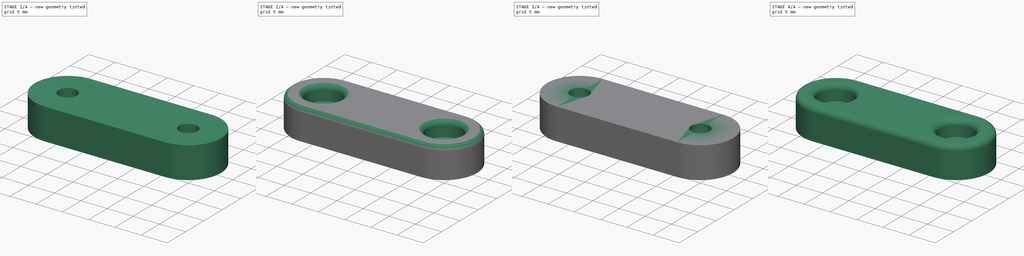
[diagram: build sequence overview — one tinted view per stage of 4, left to right]
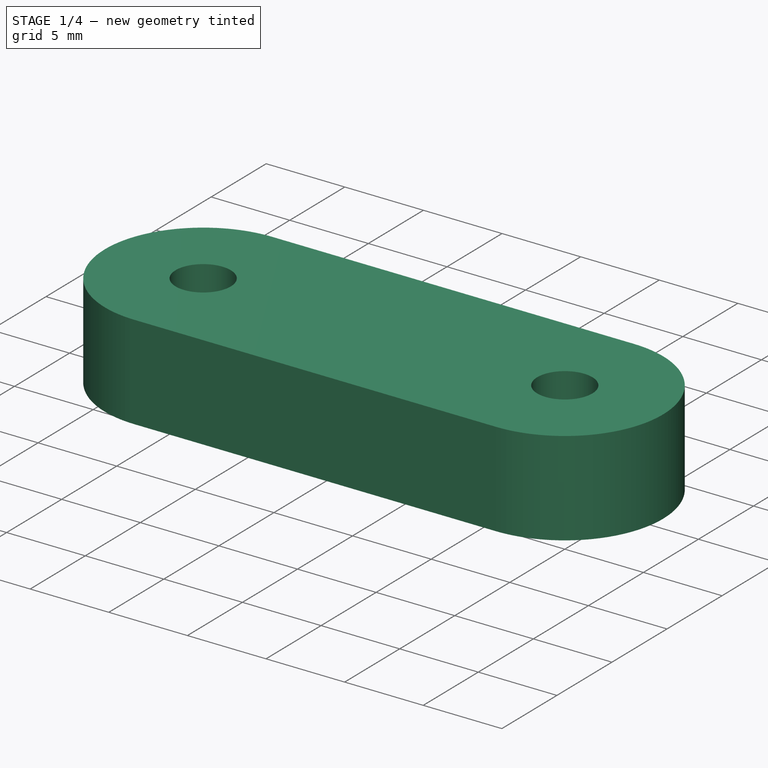
[diagram: stage 1 of 4 — iso view after this stage's code; geometry added in this stage tinted green]
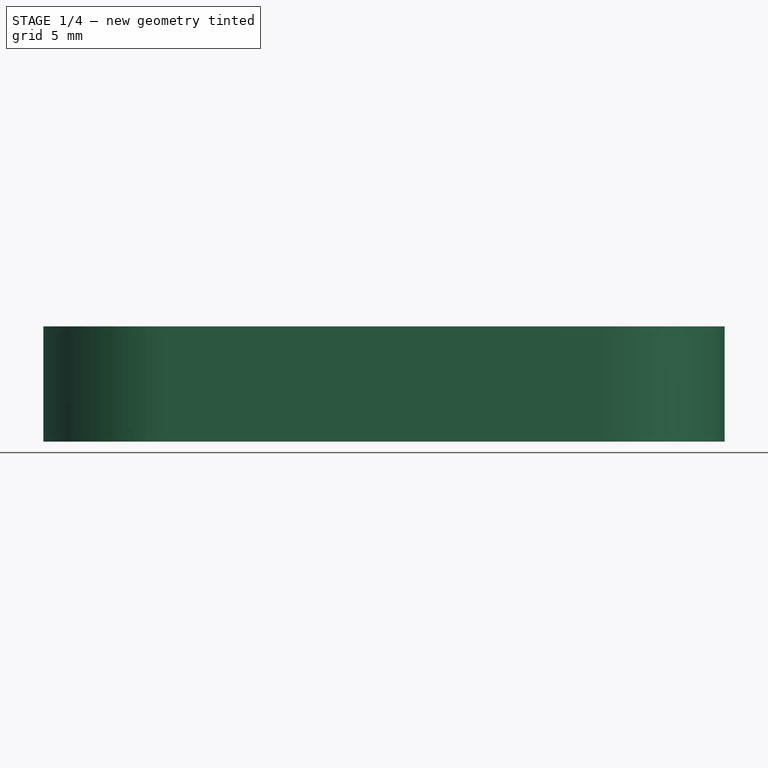
[diagram: stage 1 of 4 — front view after this stage's code; geometry added in this stage tinted green]
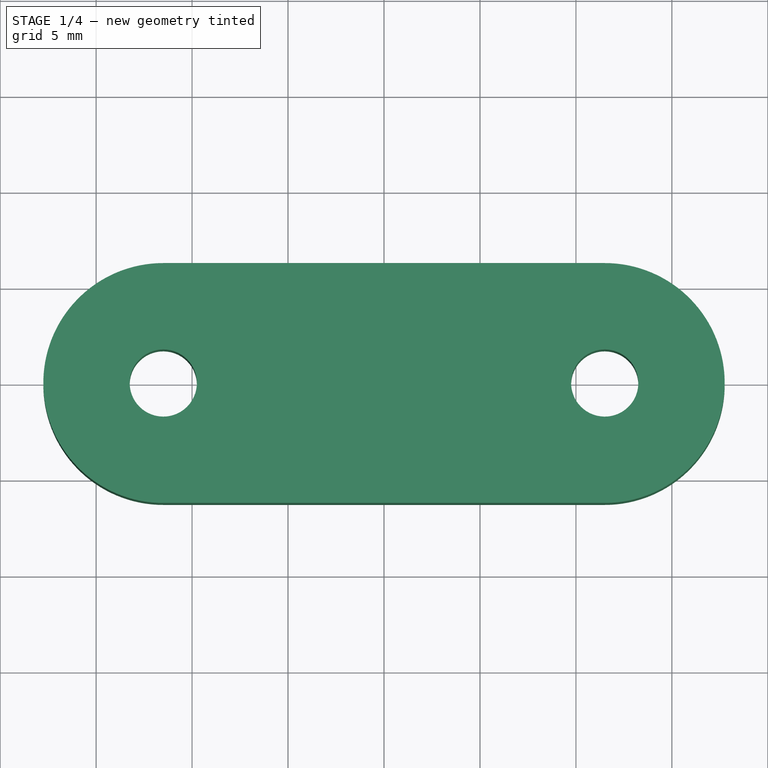
[diagram: stage 1 of 4 — top view after this stage's code; geometry added in this stage tinted green]
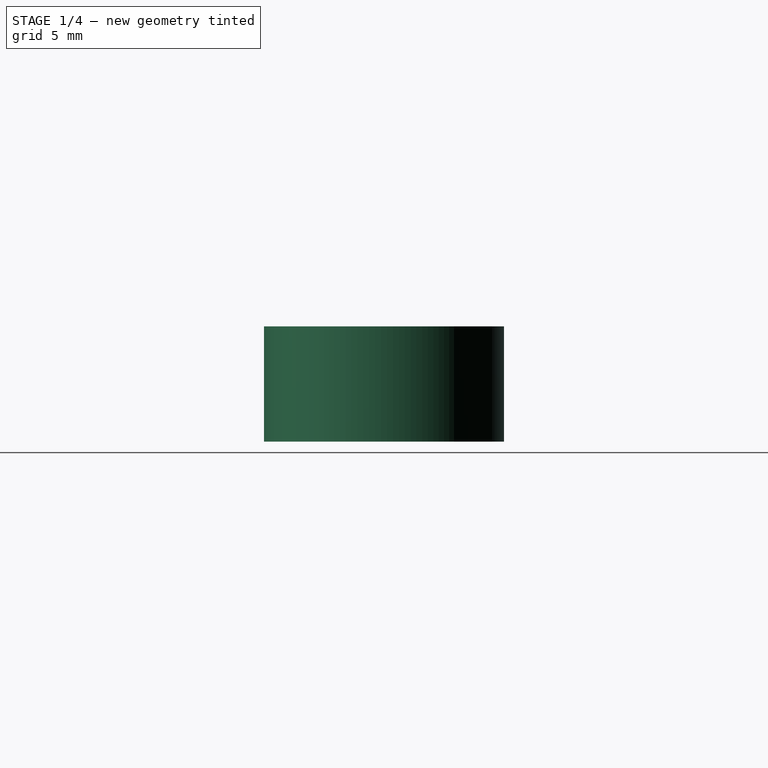
[diagram: stage 1 of 4 — right view after this stage's code; geometry added in this stage tinted green]
FCSTD DOCUMENT  (FreeCAD 0.20RUnknown)
Label: magnet_holder
License: All rights reserved
LicenseURL: http://en.wikipedia.org/wiki/All_rights_reserved
objects: Sketcher::SketchObject×8, PartDesign::Pocket×6, PartDesign::Fillet×4, PartDesign::Pad×2, PartDesign::Body×2, Spreadsheet::Sheet×1
note: 34 computed .brp shape members not serialized (recipe doc carries the construction recipe); baked Part::Feature solids carry a one-line shape summary decoded from their .brp

FEATURE [PartDesign::Body] Body  label="square_magnet_body"
  Group = -> [Sketch,Pad,Sketch002,Pocket,Sketch003,Pocket001,Fillet,Sketch004,Pocket002,Fillet001]
  Origin = -> Origin
  Tip = -> Fillet001
FEATURE [Sketcher::SketchObject] Sketch005  label="holder_outline001"
  FullyConstrained = true
  MapMode = 5
  Support = -> [XY_Plane001]
  expr: Constraints[7] = <<Params>>.holder_y_len
  expr: Constraints[8] = <<Params>>.holder_x_len
  sketch-geometry (8):
    g0: ArcOfCircle CenterX=-11.5 CenterY=-4e-16 CenterZ=0 NormalX=0 NormalY=0 NormalZ=1 AngleXU=0 Radius=6.25 StartAngle=1.5708 EndAngle=4.71239
    g1: ArcOfCircle CenterX=11.5 CenterY=-1e-16 CenterZ=0 NormalX=0 NormalY=0 NormalZ=1 AngleXU=0 Radius=6.25 StartAngle=4.71239 EndAngle=7.85398
    g2: LineSegment StartX=-11.5 StartY=-6.25 StartZ=0 EndX=11.5 EndY=-6.25 EndZ=0
    g3: LineSegment StartX=-11.5 StartY=6.25 StartZ=0 EndX=11.5 EndY=6.25 EndZ=0
    g4: GeomPoint X=-11.5 Y=-4e-16 Z=0
    g5: GeomPoint X=11.5 Y=-1e-16 Z=0
    g6: LineSegment StartX=-11.5 StartY=6.25 StartZ=0 EndX=-11.5 EndY=-6.25 EndZ=0
    g7: LineSegment StartX=11.5 StartY=6.25 StartZ=0 EndX=11.5 EndY=-6.25 EndZ=0
  constraints (15):
    c: Tangent(g0,g3) = 1.5708
    c: Tangent(g0,g2) = -1.5708
    c: Tangent(g2,g1) = -1.5708
    c: Tangent(g3,g1) = 1.5708
    c: Horizontal(g2)
    c: Equal(g0,g1)
    c: Symmetric(g0,g1,g-1)
    c: DistanceY(g0,g0) = 12.5
    c: DistanceX(g0,g1) = 23
    c: Coincident(g4,g0)
    c: Coincident(g5,g1)
    c: Coincident(g6,g0)
    c: Coincident(g6,g0)
    c: Coincident(g7,g1)
    c: Coincident(g7,g1)
FEATURE [PartDesign::Pad] Pad001
  Direction = (0,0,1)
  Length = 6
  Length2 = 100
  Profile = -> Sketch005
  ReferenceAxis = -> Sketch005 [N_Axis]
  Type = 0
  expr: Length = <<Params>>.holder_z_len
FEATURE [Sketcher::SketchObject] Sketch006  label="magnet_outline001"
  FullyConstrained = true
  MapMode = 5
  Support = -> [XY_Plane001]
  expr: Constraints[1] = <<Params>>.magnet_diameter
  sketch-geometry (1):
    g0: Circle CenterX=0 CenterY=0 CenterZ=0 NormalX=0 NormalY=0 NormalZ=1 AngleXU=0 Radius=5
  constraints (2):
    c: Coincident(g0,g-1)
    c: Diameter(g0) = 10
FEATURE [PartDesign::Pocket] Pocket003
  BaseFeature = -> Pad001
  Direction = (0,0,-1)
  Length = 2
  Length2 = 100
  Profile = -> Sketch006
  ReferenceAxis = -> Sketch006 [N_Axis]
  Reversed = true
  Type = 0
  expr: Length = <<Params>>.magnet_z_len
FEATURE [Sketcher::SketchObject] Sketch007  label="holes001"
  FullyConstrained = true
  MapMode = 5
  Support = -> [XY_Plane001]
  expr: Constraints[4] = <<Params>>.screw_hole_diam
  expr: Constraints[5] = <<Params>>.screw_hole_diam
  expr: Constraints[6] = <<Params>>.screw_hole_dist_center
  sketch-geometry (3):
    g0: LineSegment StartX=-11.5 StartY=0 StartZ=0 EndX=11.5 EndY=0 EndZ=0
    g1: Circle CenterX=11.5 CenterY=0 CenterZ=0 NormalX=0 NormalY=0 NormalZ=1 AngleXU=0 Radius=1.75
    g2: Circle CenterX=-11.5 CenterY=0 CenterZ=0 NormalX=0 NormalY=0 NormalZ=1 AngleXU=0 Radius=1.75
  constraints (7):
    c: Horizontal(g0)
    c: Symmetric(g0,g0,g-1)
    c: Coincident(g1,g0)
    c: Coincident(g2,g0)
    c: Diameter(g1) = 3.5
    c: Diameter(g2) = 3.5
    c: DistanceX(g2,g-1) = 11.5
FEATURE [PartDesign::Pocket] Pocket004
  BaseFeature = -> Pocket003
  Direction = (0,0,-1)
  Length = 5
  Length2 = 100
  Profile = -> Sketch007
  Reversed = true
  Type = 1
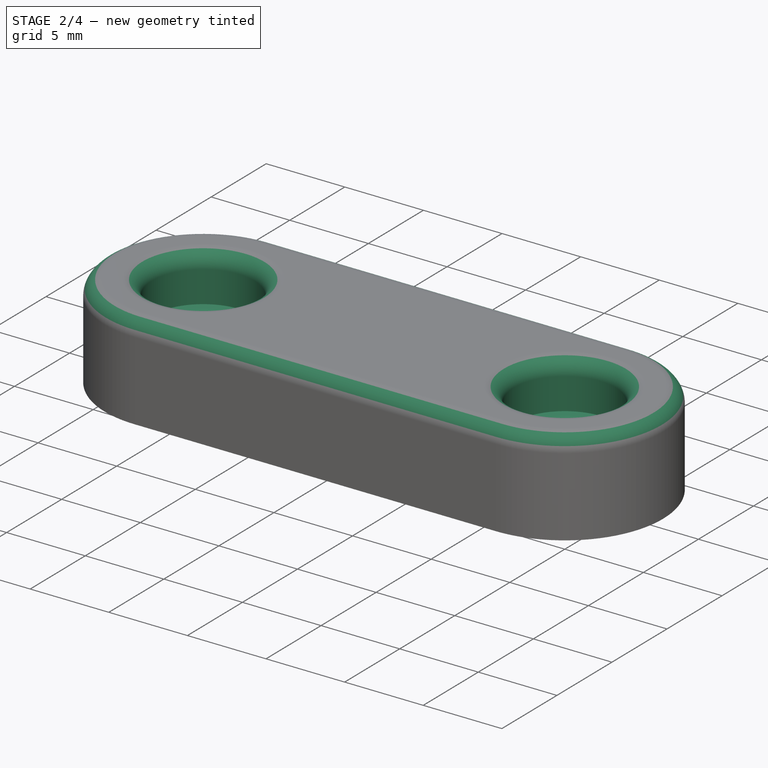
[diagram: stage 2 of 4 — iso view after this stage's code; geometry added in this stage tinted green]
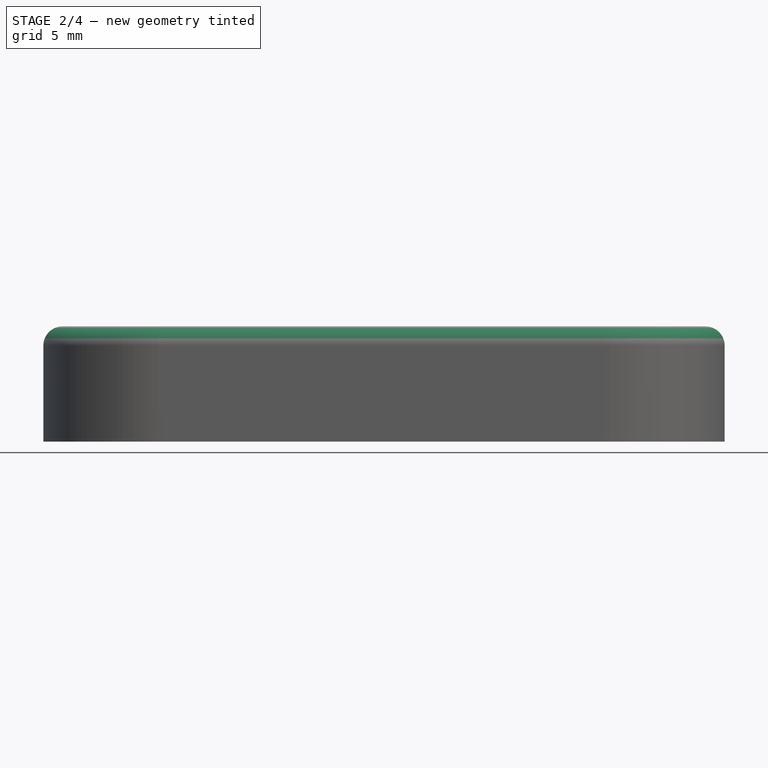
[diagram: stage 2 of 4 — front view after this stage's code; geometry added in this stage tinted green]
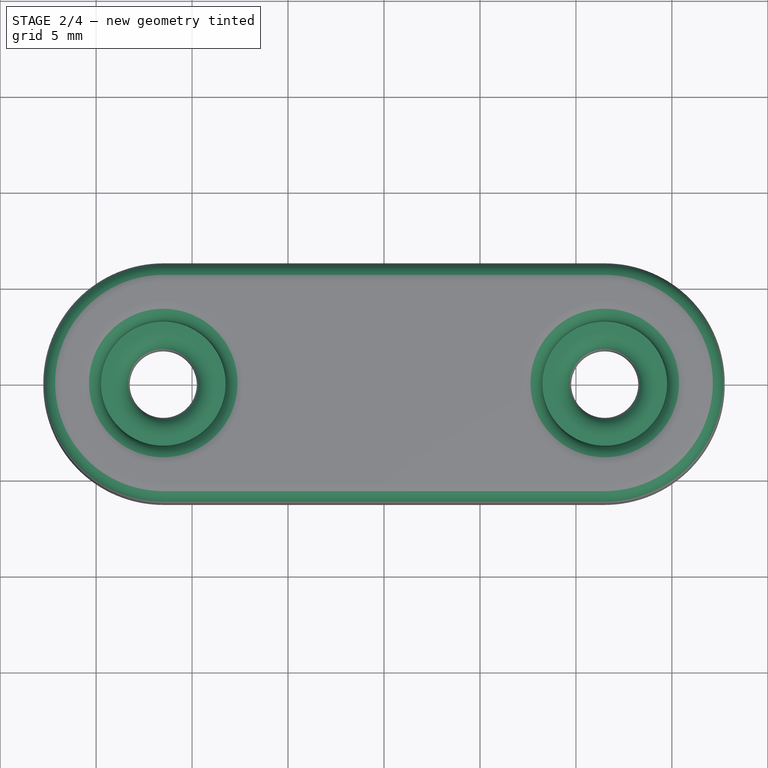
[diagram: stage 2 of 4 — top view after this stage's code; geometry added in this stage tinted green]
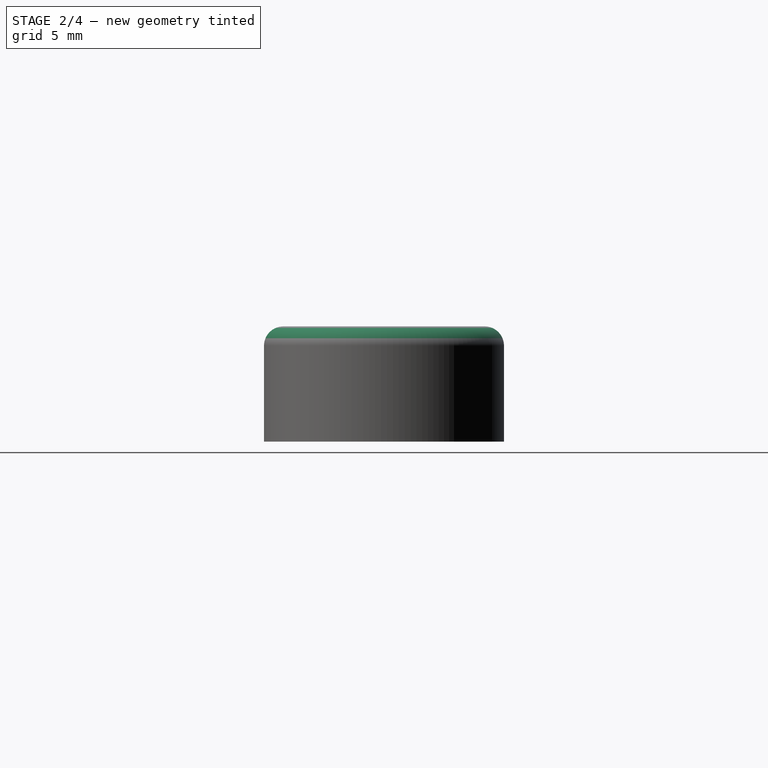
[diagram: stage 2 of 4 — right view after this stage's code; geometry added in this stage tinted green]
FEATURE [PartDesign::Fillet] Fillet002  label="holder_fillet"
  Base = -> Pocket004 [Edge10,Edge18,Edge7,Edge4]
  BaseFeature = -> Pocket004
  Radius = 1
  SupportTransform = false
  UseAllEdges = false
FEATURE [Sketcher::SketchObject] Sketch008  label="holes_top001"
  AttachmentOffset = pos=(0,0,6) rot=(0,0,1;0rad)
  FullyConstrained = true
  MapMode = 5
  Placement = pos=(0,0,6) rot=(0,0,1;0rad)
  Support = -> [XY_Plane001]
  expr: .AttachmentOffset.Base.z = <<Params>>.holder_z_len
  expr: Constraints[2] = <<Params>>.screw_hole_dist_center
  expr: Constraints[3] = <<Params>>.screw_hole_top_diam
  expr: Constraints[4] = <<Params>>.screw_hole_top_diam
  sketch-geometry (2):
    g0: Circle CenterX=-11.5 CenterY=0 CenterZ=0 NormalX=0 NormalY=0 NormalZ=1 AngleXU=0 Radius=3.25
    g1: Circle CenterX=11.5 CenterY=0 CenterZ=0 NormalX=0 NormalY=0 NormalZ=1 AngleXU=0 Radius=3.25
  constraints (5):
    c: PointOnObject(g0,g-1)
    c: Symmetric(g1,g0,g-1)
    c: DistanceX(g0,g-1) = 11.5
    c: Diameter(g0) = 6.5
    c: Diameter(g1) = 6.5
FEATURE [PartDesign::Pocket] Pocket005
  BaseFeature = -> Fillet002
  Direction = (0,0,-1)
  Length = 3
  Length2 = 100
  Profile = -> Sketch008
  ReferenceAxis = -> Sketch008 [N_Axis]
  Type = 0
  expr: Length = <<Params>>.holder_z_len / 2
FEATURE [PartDesign::Fillet] Fillet003
  Base = -> Pocket005 [Edge27,Edge23,Edge24,Edge31]
  BaseFeature = -> Pocket005
  Radius = 1
  SupportTransform = false
  UseAllEdges = false
FEATURE [PartDesign::Body] Body001  label="round_magnet_body"
  Group = -> [Sketch005,Pad001,Sketch006,Pocket003,Sketch007,Pocket004,Fillet002,Sketch008,Pocket005,Fillet003]
  Origin = -> Origin001
  Tip = -> Fillet003
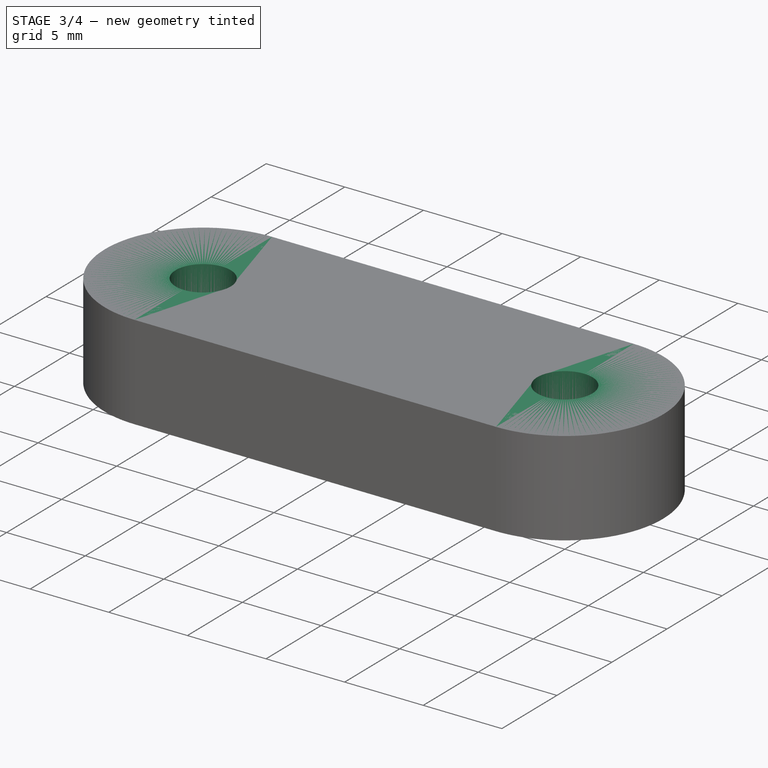
[diagram: stage 3 of 4 — iso view after this stage's code; geometry added in this stage tinted green]
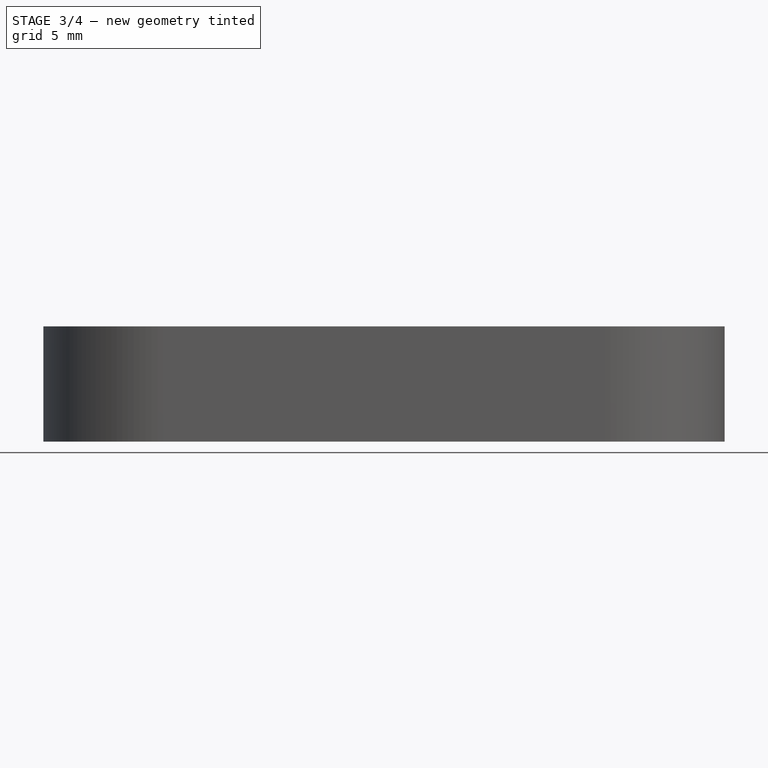
[diagram: stage 3 of 4 — front view after this stage's code; geometry added in this stage tinted green]
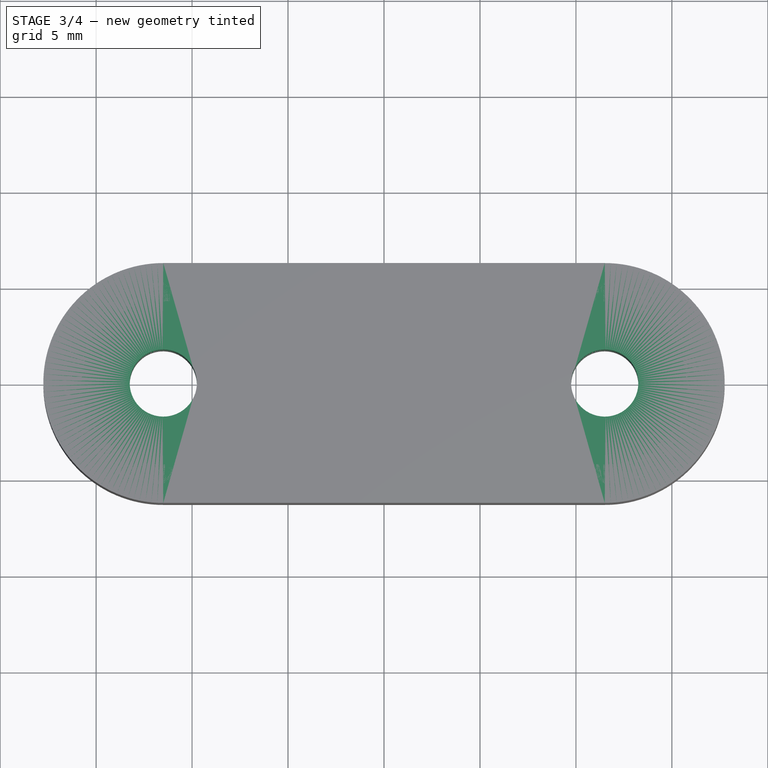
[diagram: stage 3 of 4 — top view after this stage's code; geometry added in this stage tinted green]
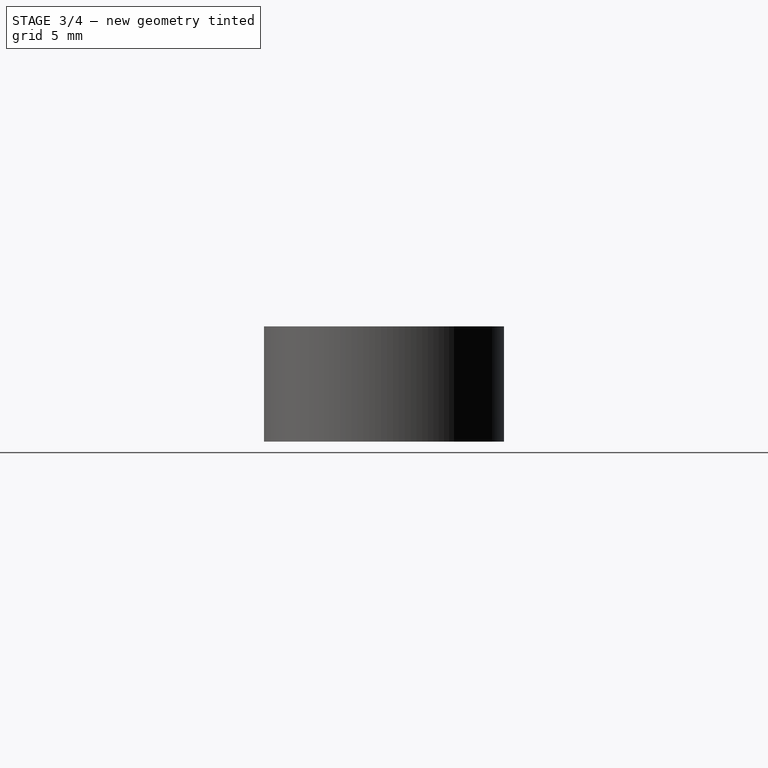
[diagram: stage 3 of 4 — right view after this stage's code; geometry added in this stage tinted green]
FEATURE [Sketcher::SketchObject] Sketch  label="holder_outline"
  FullyConstrained = true
  MapMode = 5
  Support = -> [XY_Plane]
  expr: Constraints[7] = <<Params>>.holder_y_len
  expr: Constraints[8] = <<Params>>.holder_x_len
  sketch-geometry (8):
    g0: ArcOfCircle CenterX=-11.5 CenterY=-4e-16 CenterZ=0 NormalX=0 NormalY=0 NormalZ=1 AngleXU=0 Radius=6.25 StartAngle=1.5708 EndAngle=4.71239
    g1: ArcOfCircle CenterX=11.5 CenterY=-3e-16 CenterZ=0 NormalX=0 NormalY=0 NormalZ=1 AngleXU=0 Radius=6.25 StartAngle=4.71239 EndAngle=7.85398
    g2: LineSegment StartX=-11.5 StartY=-6.25 StartZ=0 EndX=11.5 EndY=-6.25 EndZ=0
    g3: LineSegment StartX=-11.5 StartY=6.25 StartZ=0 EndX=11.5 EndY=6.25 EndZ=0
    g4: GeomPoint X=-11.5 Y=-4e-16 Z=0
    g5: GeomPoint X=11.5 Y=-3e-16 Z=0
    g6: LineSegment StartX=-11.5 StartY=6.25 StartZ=0 EndX=-11.5 EndY=-6.25 EndZ=0
    g7: LineSegment StartX=11.5 StartY=6.25 StartZ=0 EndX=11.5 EndY=-6.25 EndZ=0
  constraints (15):
    c: Tangent(g0,g3) = 1.5708
    c: Tangent(g0,g2) = -1.5708
    c: Tangent(g2,g1) = -1.5708
    c: Tangent(g3,g1) = 1.5708
    c: Horizontal(g2)
    c: Equal(g0,g1)
    c: Symmetric(g0,g1,g-1)
    c: DistanceY(g0,g0) = 12.5
    c: DistanceX(g0,g1) = 23
    c: Coincident(g4,g0)
    c: Coincident(g5,g1)
    c: Coincident(g6,g0)
    c: Coincident(g6,g0)
    c: Coincident(g7,g1)
    c: Coincident(g7,g1)
FEATURE [PartDesign::Pad] Pad
  Direction = (0,0,1)
  Length = 6
  Length2 = 100
  Profile = -> Sketch
  Type = 0
  expr: Length = <<Params>>.holder_z_len
FEATURE [Sketcher::SketchObject] Sketch002  label="magnet_outline"
  FullyConstrained = true
  MapMode = 5
  Support = -> [XY_Plane]
  expr: Constraints[10] = <<Params>>.magnet_x_len
  expr: Constraints[9] = <<Params>>.magnet_y_len
  sketch-geometry (4):
    g0: LineSegment StartX=-5 StartY=5 StartZ=0 EndX=5 EndY=5 EndZ=0
    g1: LineSegment StartX=5 StartY=5 StartZ=0 EndX=5 EndY=-5 EndZ=0
    g2: LineSegment StartX=5 StartY=-5 StartZ=0 EndX=-5 EndY=-5 EndZ=0
    g3: LineSegment StartX=-5 StartY=-5 StartZ=0 EndX=-5 EndY=5 EndZ=0
  constraints (11):
    c: Coincident(g0,g1)
    c: Coincident(g1,g2)
    c: Coincident(g2,g3)
    c: Coincident(g3,g0)
    c: Horizontal(g0)
    c: Horizontal(g2)
    c: Vertical(g1)
    c: Vertical(g3)
    c: Symmetric(g1,g0,g-1)
    c: DistanceY(g1,g1) = 10
    c: DistanceX(g0,g0) = 10
FEATURE [PartDesign::Pocket] Pocket
  BaseFeature = -> Pad
  Direction = (0,0,-1)
  Length = 2.1
  Length2 = 100
  Profile = -> Sketch002
  ReferenceAxis = -> Sketch002 [N_Axis]
  Reversed = true
  Type = 0
  expr: Length = <<Params>>.magnet_z_len + <<Params>>.magnet_z_extra
FEATURE [Sketcher::SketchObject] Sketch003  label="holes"
  FullyConstrained = true
  MapMode = 5
  Support = -> [XY_Plane]
  expr: Constraints[4] = <<Params>>.screw_hole_diam
  expr: Constraints[5] = <<Params>>.screw_hole_diam
  expr: Constraints[6] = <<Params>>.screw_hole_dist_center
  sketch-geometry (3):
    g0: LineSegment StartX=-11.5 StartY=0 StartZ=0 EndX=11.5 EndY=0 EndZ=0
    g1: Circle CenterX=11.5 CenterY=0 CenterZ=0 NormalX=0 NormalY=0 NormalZ=1 AngleXU=0 Radius=1.75
    g2: Circle CenterX=-11.5 CenterY=0 CenterZ=0 NormalX=0 NormalY=0 NormalZ=1 AngleXU=0 Radius=1.75
  constraints (7):
    c: Horizontal(g0)
    c: Symmetric(g0,g0,g-1)
    c: Coincident(g1,g0)
    c: Coincident(g2,g0)
    c: Diameter(g1) = 3.5
    c: Diameter(g2) = 3.5
    c: DistanceX(g2,g-1) = 11.5
FEATURE [PartDesign::Pocket] Pocket001
  BaseFeature = -> Pocket
  Direction = (0,0,-1)
  Length = 5
  Length2 = 100
  Profile = -> Sketch003
  Reversed = true
  Type = 1
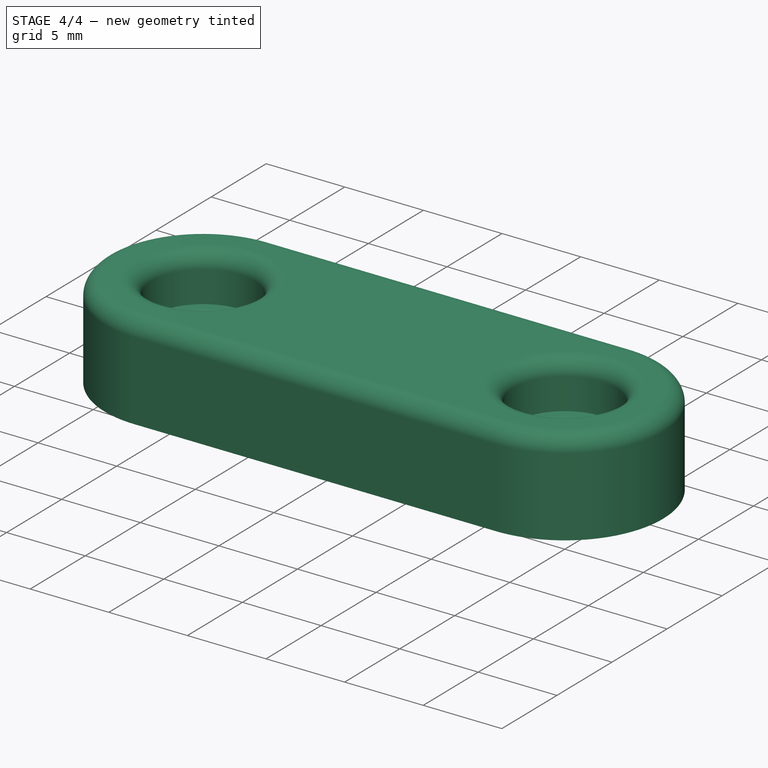
[diagram: stage 4 of 4 — iso view after this stage's code; geometry added in this stage tinted green]
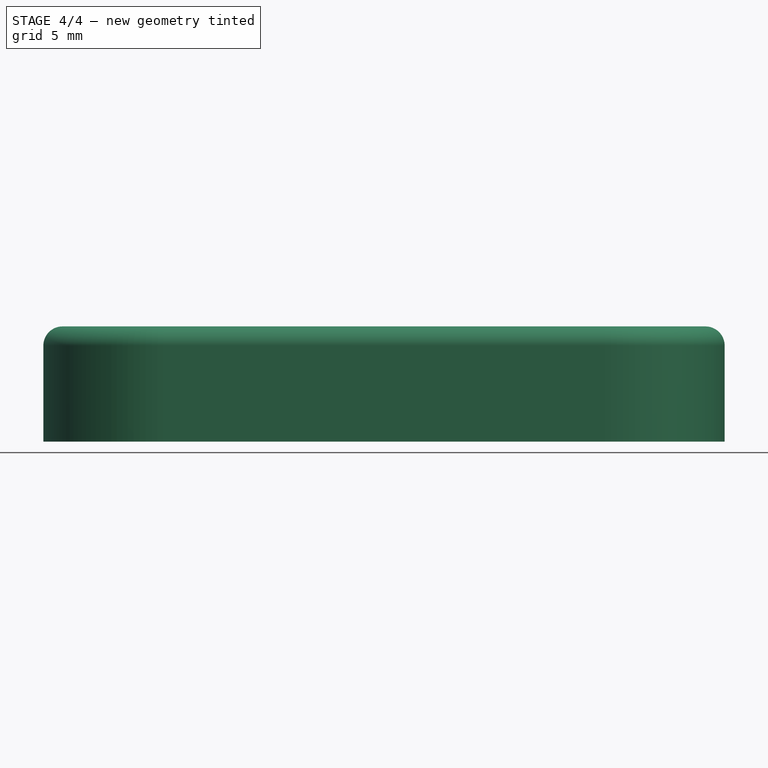
[diagram: stage 4 of 4 — front view after this stage's code; geometry added in this stage tinted green]
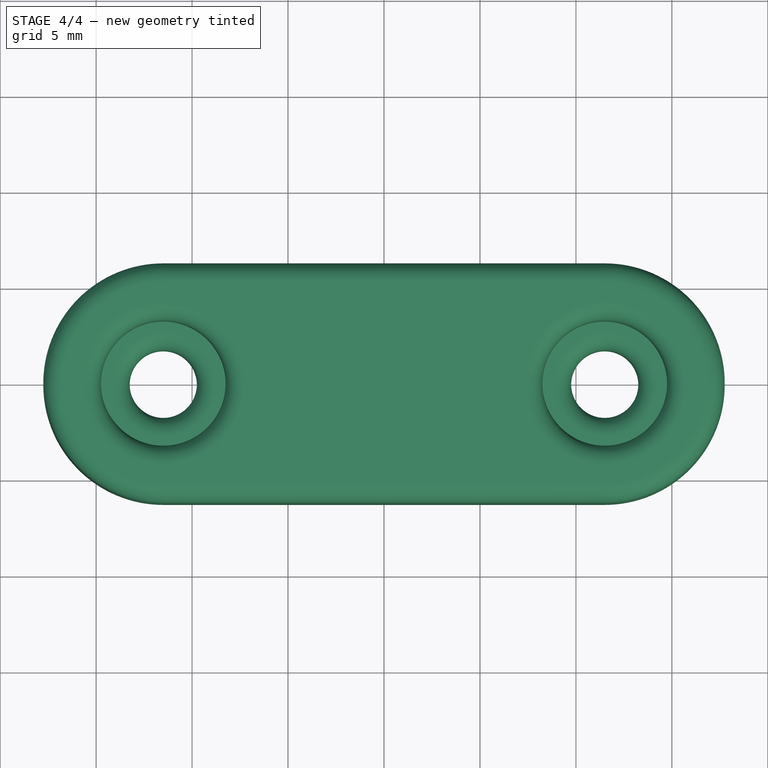
[diagram: stage 4 of 4 — top view after this stage's code; geometry added in this stage tinted green]
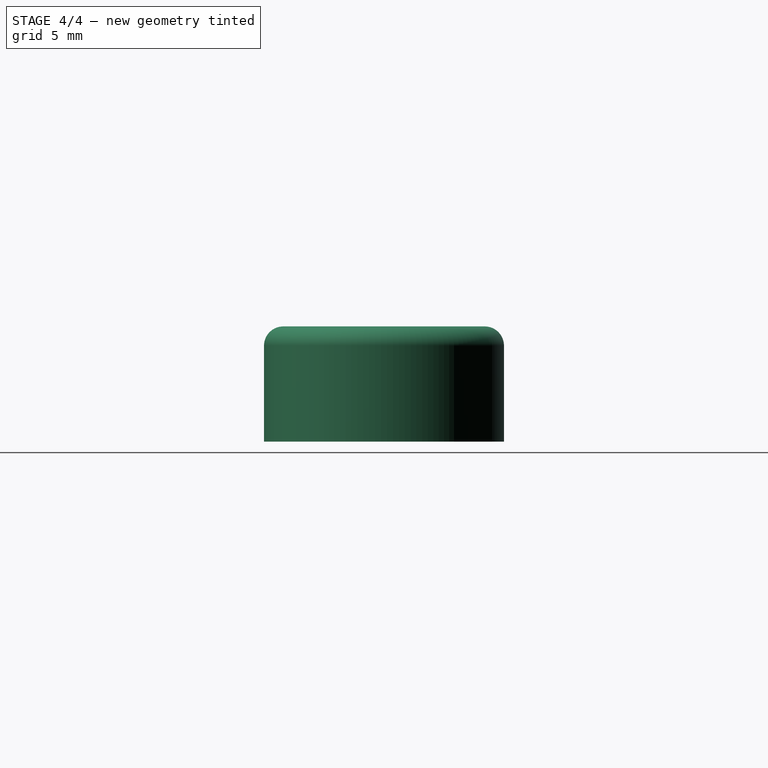
[diagram: stage 4 of 4 — right view after this stage's code; geometry added in this stage tinted green]
FEATURE [PartDesign::Fillet] Fillet  label="holder_fillet001"
  Base = -> Pocket001 [Edge10,Edge18,Edge7,Edge4]
  BaseFeature = -> Pocket001
  Radius = 1
  SupportTransform = false
  UseAllEdges = false
FEATURE [Spreadsheet::Sheet] Spreadsheet  label="Params"
  cells = A1=magnet_x_len; B1(magnet_x_len)=10; A2=magnet_y_len; B2(magnet_y_len)=10; A3=magnet_z_len; B3(magnet_z_len)=2; A4=magnet_z_extra; B4(magnet_z_extra)=0.1; A5=magnet_diameter; B5(magnet_diameter)=10; A6=screw_hole_diam; B6(screw_hole_diam)=3.5; A7=screw_hole_dist_center; B7(screw_hole_dist_center)==holder_x_len / 2; A8=holder_x_len; B8(holder_x_len)==magnet_x_len + screw_hole_top_diam * 2; A9=holder_y_len; B9(holder_y_len)==max(magnet_y_len + 2; screw_hole_top_diam + 6); A10=holder_z_len; B10(holder_z_len)==max(magnet_z_len + 1; 6); A11=screw_hole_top_diam; B11(screw_hole_top_diam)==screw_hole_diam + 3; A14=Note: for retctangular magnets use magnet_[xyz]_len; A15=For round magnet use magnet_diameter and magnet_z_len; A18=Magnet types; A19=x_len; B19=y_len; C19=z_len; D19=diam; E19=url; C20=3; D20=8; E20=https://www.kjell.com/no/produkter/hjem-fritid/gadgets/neodym-magneter-8-mm-10-pk.-p50070; C21=3; D21=12; E21=https://www.kjell.com/no/produkter/hjem-fritid/gadgets/neodym-magneter-12-mm-6-pk.-p50071; C22=3; D22=18; E22=https://www.kjell.com/no/produkter/hjem-fritid/gadgets/neodym-magneter-18-mm-3-pk.-p50072; C23=2; D23=10; E23=https://www.clasohlson.com/no/Neodymmagnet/p/31-1467; C24=?; D24=10; E24=https://www.clasohlson.com/no/Neodymmagnet-/p/31-1466; A25=10; B25=10; C25=5; E25=https://www.clasohlson.com/no/Neodymmagnet-6-stk-pk/p/38-9040
FEATURE [Sketcher::SketchObject] Sketch004  label="holes_top"
  AttachmentOffset = pos=(0,0,6) rot=(0,0,1;0rad)
  FullyConstrained = true
  MapMode = 5
  Placement = pos=(0,0,6) rot=(0,0,1;0rad)
  Support = -> [XY_Plane]
  expr: .AttachmentOffset.Base.z = <<Params>>.holder_z_len
  expr: Constraints[2] = <<Params>>.screw_hole_dist_center
  expr: Constraints[3] = <<Params>>.screw_hole_top_diam
  expr: Constraints[4] = <<Params>>.screw_hole_top_diam
  sketch-geometry (2):
    g0: Circle CenterX=-11.5 CenterY=0 CenterZ=0 NormalX=0 NormalY=0 NormalZ=1 AngleXU=0 Radius=3.25
    g1: Circle CenterX=11.5 CenterY=0 CenterZ=0 NormalX=0 NormalY=0 NormalZ=1 AngleXU=0 Radius=3.25
  constraints (5):
    c: PointOnObject(g0,g-1)
    c: Symmetric(g1,g0,g-1)
    c: DistanceX(g0,g-1) = 11.5
    c: Diameter(g0) = 6.5
    c: Diameter(g1) = 6.5
FEATURE [PartDesign::Pocket] Pocket002
  BaseFeature = -> Fillet
  Direction = (0,0,-1)
  Length = 3
  Length2 = 100
  Profile = -> Sketch004
  Type = 0
  expr: Length = <<Params>>.holder_z_len / 2
FEATURE [PartDesign::Fillet] Fillet001
  Base = -> Pocket002 [Edge26,Edge27,Edge30,Edge40]
  BaseFeature = -> Pocket002
  Radius = 1
  SupportTransform = false
  UseAllEdges = false
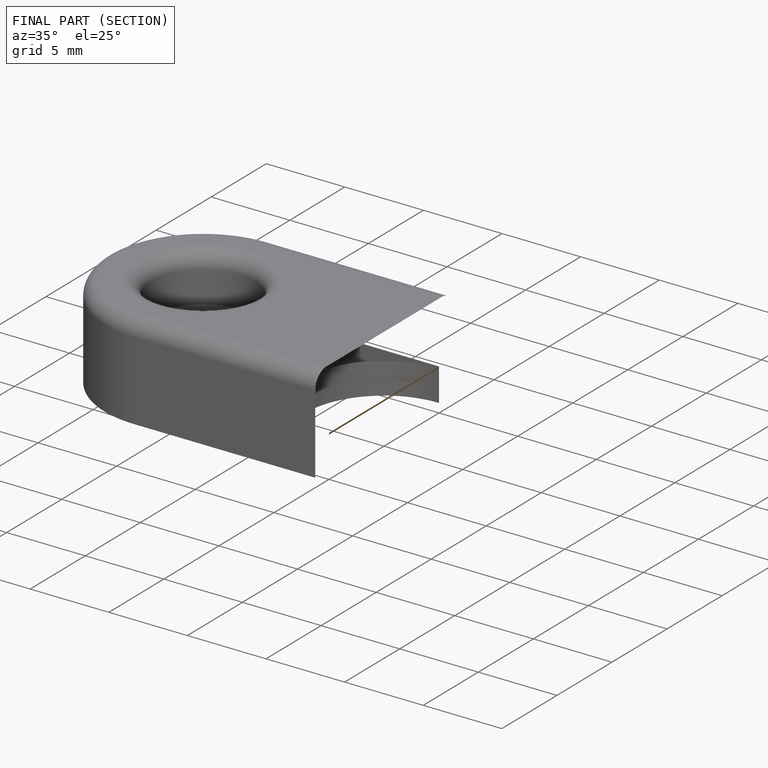
[diagram: finished part — half-section view (interior)]
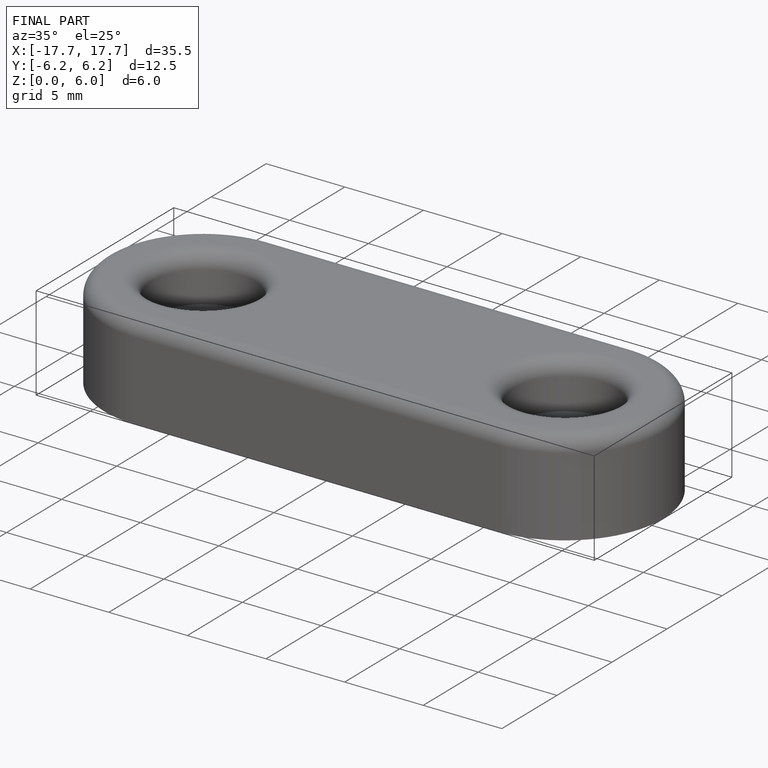
[diagram: finished part — iso view with bounding-box wireframe]
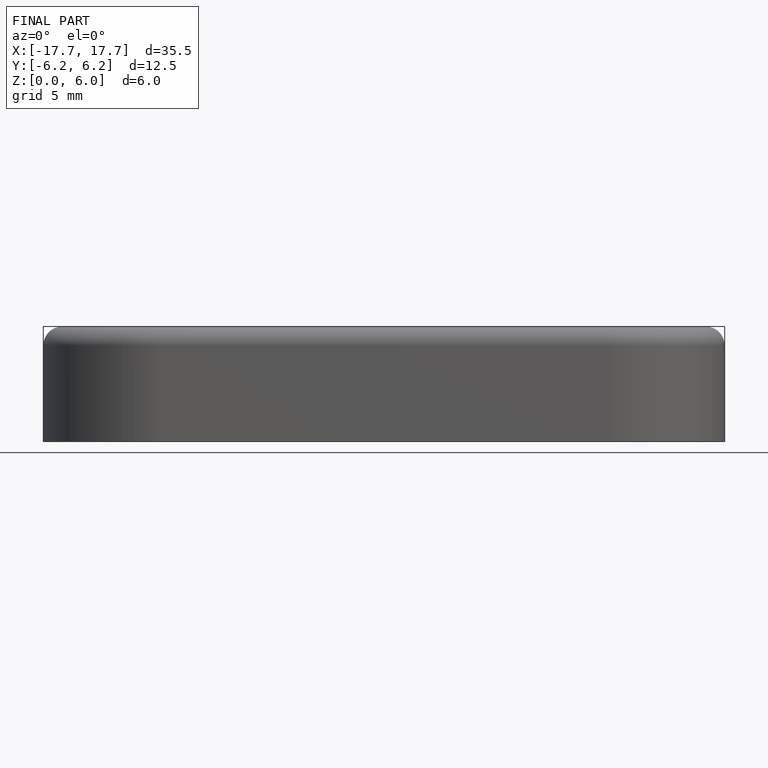
[diagram: finished part — front view with bounding-box wireframe]
